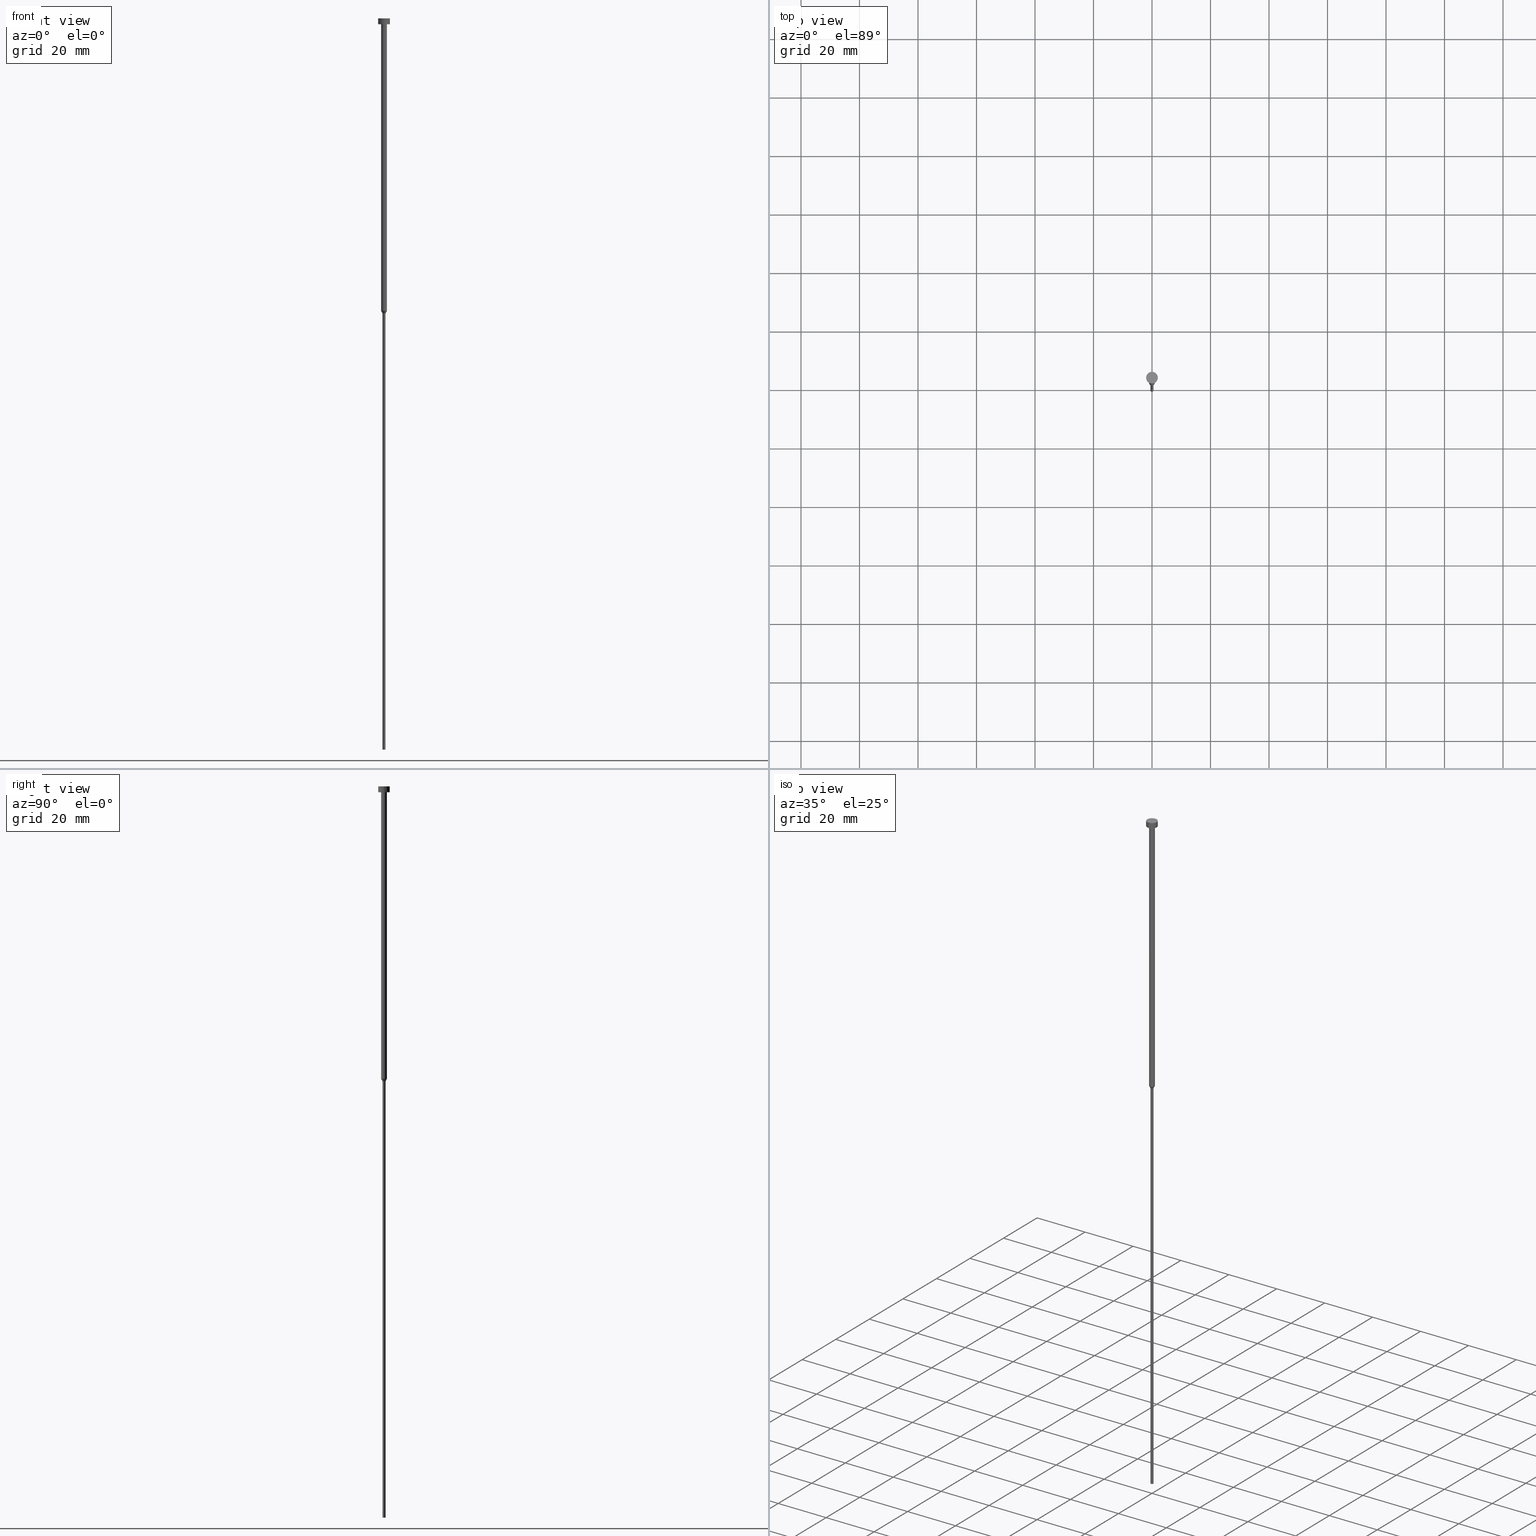
[diagram: canonical four-view strip — front | top / right | iso, engineering-drawing reading convention]
A machine part, canonical four-view strip (front | top / right | iso — engineering-drawing reading convention). The complete STEP part file that produces these views, byte-faithful:
ISO-10303-21;
HEADER;
FILE_DESCRIPTION (( 'STEP AP203' ),
    '1' );
FILE_NAME ('5bb6.STEP',
    '2023-02-13T10:58:22',
    ( '' ),
    ( '' ),
    'SwSTEP 2.0',
    'SolidWorks 2019',
    '' );
FILE_SCHEMA (( 'CONFIG_CONTROL_DESIGN' ));
ENDSEC;

DATA;
#1 = DIRECTION ( 'NONE',  ( -0.000000000000000000, -0.000000000000000000, 1.000000000000000000 ) ) ;
#2 = DIRECTION ( 'NONE',  ( -0.000000000000000000, -0.000000000000000000, 1.000000000000000000 ) ) ;
#3 = CONICAL_SURFACE ( 'NONE', #319, 1.000000000000003109, 0.5235987755982994818 ) ;
#4 = PLANE ( 'NONE',  #270 ) ;
#5 = DIRECTION ( 'NONE',  ( -0.000000000000000000, -0.000000000000000000, 1.000000000000000000 ) ) ;
#6 = DIRECTION ( 'NONE',  ( -0.000000000000000000, -0.000000000000000000, 1.000000000000000000 ) ) ;
#7 = VECTOR ( 'NONE', #55, 1000.000000000000114 ) ;
#8 =( GEOMETRIC_REPRESENTATION_CONTEXT ( 3 ) GLOBAL_UNCERTAINTY_ASSIGNED_CONTEXT ( ( #152 ) ) GLOBAL_UNIT_ASSIGNED_CONTEXT ( ( #344, #128, #123 ) ) REPRESENTATION_CONTEXT ( 'NONE', 'WORKASPACE' ) );
#9 = ADVANCED_FACE ( 'NONE', ( #131 ), #164, .T. ) ;
#10 = PERSON_AND_ORGANIZATION ( #248, #271 ) ;
#11 = PERSON_AND_ORGANIZATION_ROLE ( 'design_supplier' ) ;
#12 = EDGE_LOOP ( 'NONE', ( #292, #236, #181, #266 ) ) ;
#13 = DIRECTION ( 'NONE',  ( -0.000000000000000000, -0.000000000000000000, 1.000000000000000000 ) ) ;
#14 = ORIENTED_EDGE ( 'NONE', *, *, #288, .T. ) ;
#15 = EDGE_CURVE ( 'NONE', #74, #40, #111, .T. ) ;
#16 = CALENDAR_DATE ( 2023, 13, 2 ) ;
#17 = ORIENTED_EDGE ( 'NONE', *, *, #353, .F. ) ;
#18 = COORDINATED_UNIVERSAL_TIME_OFFSET ( 1, 0, .AHEAD. ) ;
#19 = ORIENTED_EDGE ( 'NONE', *, *, #173, .F. ) ;
#20 = EDGE_LOOP ( 'NONE', ( #17, #345 ) ) ;
#21 = CIRCLE ( 'NONE', #140, 0.5000000000000000000 ) ;
#22 = CIRCLE ( 'NONE', #43, 1.000000000000003109 ) ;
#23 = ORIENTED_EDGE ( 'NONE', *, *, #173, .T. ) ;
#24 = LOCAL_TIME ( 11, 58, 22.00000000000000000, #46 ) ;
#25 = CARTESIAN_POINT ( 'NONE',  ( -0.5000000000000000000, 6.123233995736766036E-17, -250.0000000000000000 ) ) ;
#26 = DIRECTION ( 'NONE',  ( 0.000000000000000000, -0.000000000000000000, 1.000000000000000000 ) ) ;
#27 = CARTESIAN_POINT ( 'NONE',  ( -1.000000000000003109, 1.224646799147356905E-16, -100.0000000000000000 ) ) ;
#28 = CIRCLE ( 'NONE', #120, 2.000000000000000000 ) ;
#29 = DIRECTION ( 'NONE',  ( -0.000000000000000000, -0.000000000000000000, 1.000000000000000000 ) ) ;
#30 = CARTESIAN_POINT ( 'NONE',  ( 0.000000000000000000, 0.000000000000000000, 0.000000000000000000 ) ) ;
#31 = CARTESIAN_POINT ( 'NONE',  ( -1.000000000000003331, 1.224646799147357151E-16, 0.000000000000000000 ) ) ;
#32 = AXIS2_PLACEMENT_3D ( 'NONE', #30, #168, #249 ) ;
#33 = CC_DESIGN_APPROVAL ( #303, ( #86 ) ) ;
#34 = CARTESIAN_POINT ( 'NONE',  ( 0.5000000000000000000, 0.000000000000000000, -100.8660254037844481 ) ) ;
#35 = DIRECTION ( 'NONE',  ( -0.000000000000000000, -0.000000000000000000, 1.000000000000000000 ) ) ;
#36 = DIRECTION ( 'NONE',  ( -0.000000000000000000, -0.000000000000000000, 1.000000000000000000 ) ) ;
#37 = PERSON_AND_ORGANIZATION ( #248, #271 ) ;
#38 = ORIENTED_EDGE ( 'NONE', *, *, #48, .F. ) ;
#39 = APPROVAL_STATUS ( 'not_yet_approved' ) ;
#40 = VERTEX_POINT ( 'NONE', #81 ) ;
#41 = APPLICATION_CONTEXT ( 'configuration controlled 3d designs of mechanical parts and assemblies' ) ;
#42 = VERTEX_POINT ( 'NONE', #49 ) ;
#43 = AXIS2_PLACEMENT_3D ( 'NONE', #67, #5, #197 ) ;
#44 = PERSON_AND_ORGANIZATION_ROLE ( 'creator' ) ;
#45 = ORIENTED_EDGE ( 'NONE', *, *, #256, .F. ) ;
#46 = COORDINATED_UNIVERSAL_TIME_OFFSET ( 1, 0, .AHEAD. ) ;
#47 = VERTEX_POINT ( 'NONE', #161 ) ;
#48 = EDGE_CURVE ( 'NONE', #42, #318, #51, .T. ) ;
#49 = CARTESIAN_POINT ( 'NONE',  ( 0.5000000000000000000, 0.000000000000000000, -250.0000000000000000 ) ) ;
#50 = VECTOR ( 'NONE', #119, 1000.000000000000000 ) ;
#51 = LINE ( 'NONE', #269, #155 ) ;
#52 = CC_DESIGN_APPROVAL ( #338, ( #226 ) ) ;
#53 = EDGE_CURVE ( 'NONE', #73, #204, #212, .T. ) ;
#54 = DIRECTION ( 'NONE',  ( -0.000000000000000000, -0.000000000000000000, 1.000000000000000000 ) ) ;
#55 = DIRECTION ( 'NONE',  ( 0.5000000000000005551, 0.000000000000000000, 0.8660254037844382635 ) ) ;
#56 = AXIS2_PLACEMENT_3D ( 'NONE', #300, #322, #328 ) ;
#57 = CARTESIAN_POINT ( 'NONE',  ( 0.000000000000000000, 0.000000000000000000, 0.000000000000000000 ) ) ;
#58 = ADVANCED_FACE ( 'NONE', ( #213 ), #110, .T. ) ;
#59 = LOCAL_TIME ( 11, 58, 22.00000000000000000, #121 ) ;
#60 = CARTESIAN_POINT ( 'NONE',  ( -1.000000000000003109, 1.224646799147356905E-16, -100.0000000000000000 ) ) ;
#61 = DIRECTION ( 'NONE',  ( 1.000000000000000000, 0.000000000000000000, 0.000000000000000000 ) ) ;
#62 = LINE ( 'NONE', #31, #50 ) ;
#63 = AXIS2_PLACEMENT_3D ( 'NONE', #190, #54, #355 ) ;
#64 = EDGE_CURVE ( 'NONE', #318, #74, #167, .T. ) ;
#65 = PRODUCT_DEFINITION_SHAPE ( 'NONE', 'NONE',  #254 ) ;
#66 = LINE ( 'NONE', #172, #135 ) ;
#67 = CARTESIAN_POINT ( 'NONE',  ( 0.000000000000000000, 0.000000000000000000, -100.0000000000000000 ) ) ;
#68 = APPROVAL_STATUS ( 'not_yet_approved' ) ;
#69 = EDGE_LOOP ( 'NONE', ( #180, #260 ) ) ;
#70 = CONICAL_SURFACE ( 'NONE', #199, 1.000000000000003109, 0.5235987755982994818 ) ;
#71 = ADVANCED_FACE ( 'NONE', ( #218, #187 ), #163, .T. ) ;
#72 = DATE_TIME_ROLE ( 'creation_date' ) ;
#73 = VERTEX_POINT ( 'NONE', #215 ) ;
#74 = VERTEX_POINT ( 'NONE', #165 ) ;
#75 = APPROVAL_STATUS ( 'not_yet_approved' ) ;
#76 = ORIENTED_EDGE ( 'NONE', *, *, #352, .T. ) ;
#77 = DESIGN_CONTEXT ( 'detailed design', #41, 'design' ) ;
#78 = CALENDAR_DATE ( 2023, 13, 2 ) ;
#79 = VERTEX_POINT ( 'NONE', #25 ) ;
#80 = DATE_AND_TIME ( #323, #342 ) ;
#81 = CARTESIAN_POINT ( 'NONE',  ( 1.000000000000003553, 0.000000000000000000, -2.000000000000000444 ) ) ;
#82 = CC_DESIGN_PERSON_AND_ORGANIZATION_ASSIGNMENT ( #156, #11, ( #226 ) ) ;
#83 = DIRECTION ( 'NONE',  ( 1.000000000000000000, 0.000000000000000000, 0.000000000000000000 ) ) ;
#84 = CIRCLE ( 'NONE', #298, 0.5000000000000000000 ) ;
#85 = DIRECTION ( 'NONE',  ( 1.000000000000000000, 0.000000000000000000, 0.000000000000000000 ) ) ;
#86 = SECURITY_CLASSIFICATION ( '', '', #206 ) ;
#87 = FACE_OUTER_BOUND ( 'NONE', #294, .T. ) ;
#88 = CARTESIAN_POINT ( 'NONE',  ( 1.000000000000003109, 0.000000000000000000, -100.0000000000000000 ) ) ;
#89 = CYLINDRICAL_SURFACE ( 'NONE', #242, 0.5000000000000000000 ) ;
#90 = EDGE_CURVE ( 'NONE', #73, #318, #21, .T. ) ;
#91 = MANIFOLD_SOLID_BREP ( 'Rotovat1', #195 ) ;
#92 = CARTESIAN_POINT ( 'NONE',  ( 0.000000000000000000, 0.000000000000000000, -2.000000000000000444 ) ) ;
#93 = FACE_OUTER_BOUND ( 'NONE', #347, .T. ) ;
#94 = ADVANCED_FACE ( 'NONE', ( #109 ), #136, .T. ) ;
#95 = CARTESIAN_POINT ( 'NONE',  ( 0.000000000000000000, 0.000000000000000000, -100.0000000000000000 ) ) ;
#96 = AXIS2_PLACEMENT_3D ( 'NONE', #95, #224, #336 ) ;
#97 = DIRECTION ( 'NONE',  ( 1.000000000000000000, 0.000000000000000000, 0.000000000000000000 ) ) ;
#98 = ADVANCED_FACE ( 'NONE', ( #325 ), #137, .T. ) ;
#99 = APPROVAL_DATE_TIME ( #183, #338 ) ;
#100 = ORIENTED_EDGE ( 'NONE', *, *, #343, .T. ) ;
#101 = AXIS2_PLACEMENT_3D ( 'NONE', #145, #169, #223 ) ;
#102 = APPLICATION_PROTOCOL_DEFINITION ( 'international standard', 'config_control_design', 1994, #273 ) ;
#103 = DIRECTION ( 'NONE',  ( 1.000000000000000000, 0.000000000000000000, 0.000000000000000000 ) ) ;
#104 = ORIENTED_EDGE ( 'NONE', *, *, #256, .T. ) ;
#105 = ORIENTED_EDGE ( 'NONE', *, *, #117, .T. ) ;
#106 = AXIS2_PLACEMENT_3D ( 'NONE', #133, #26, #240 ) ;
#107 = ORIENTED_EDGE ( 'NONE', *, *, #48, .T. ) ;
#108 = ORIENTED_EDGE ( 'NONE', *, *, #15, .F. ) ;
#109 = FACE_OUTER_BOUND ( 'NONE', #127, .T. ) ;
#110 = CYLINDRICAL_SURFACE ( 'NONE', #220, 1.000000000000003331 ) ;
#111 = LINE ( 'NONE', #350, #238 ) ;
#112 = LINE ( 'NONE', #329, #335 ) ;
#113 = CIRCLE ( 'NONE', #313, 1.000000000000003553 ) ;
#114 = DIRECTION ( 'NONE',  ( 1.000000000000000000, 0.000000000000000000, 0.000000000000000000 ) ) ;
#115 = LOCAL_TIME ( 11, 58, 22.00000000000000000, #18 ) ;
#116 = DIRECTION ( 'NONE',  ( 1.000000000000000000, 0.000000000000000000, 0.000000000000000000 ) ) ;
#117 = EDGE_CURVE ( 'NONE', #47, #237, #216, .T. ) ;
#118 = CARTESIAN_POINT ( 'NONE',  ( 0.000000000000000000, 0.000000000000000000, -2.449293598294705921E-16 ) ) ;
#119 = DIRECTION ( 'NONE',  ( -0.000000000000000000, -0.000000000000000000, 1.000000000000000000 ) ) ;
#120 = AXIS2_PLACEMENT_3D ( 'NONE', #261, #286, #289 ) ;
#121 = COORDINATED_UNIVERSAL_TIME_OFFSET ( 1, 0, .AHEAD. ) ;
#122 = ORIENTED_EDGE ( 'NONE', *, *, #64, .F. ) ;
#123 =( NAMED_UNIT ( * ) SI_UNIT ( $, .STERADIAN. ) SOLID_ANGLE_UNIT ( ) );
#124 = ORIENTED_EDGE ( 'NONE', *, *, #352, .F. ) ;
#125 = ADVANCED_FACE ( 'NONE', ( #274 ), #3, .T. ) ;
#126 = APPROVAL_DATE_TIME ( #259, #177 ) ;
#127 = EDGE_LOOP ( 'NONE', ( #230, #287 ) ) ;
#128 =( NAMED_UNIT ( * ) PLANE_ANGLE_UNIT ( ) SI_UNIT ( $, .RADIAN. ) );
#129 = VECTOR ( 'NONE', #193, 1000.000000000000114 ) ;
#130 = ADVANCED_FACE ( 'NONE', ( #87 ), #70, .T. ) ;
#131 = FACE_OUTER_BOUND ( 'NONE', #275, .T. ) ;
#132 = CC_DESIGN_PERSON_AND_ORGANIZATION_ASSIGNMENT ( #37, #179, ( #86 ) ) ;
#133 = CARTESIAN_POINT ( 'NONE',  ( 0.000000000000000000, 0.000000000000000000, -1.224646799147352961E-16 ) ) ;
#134 = DIRECTION ( 'NONE',  ( -0.000000000000000000, -0.000000000000000000, 1.000000000000000000 ) ) ;
#135 = VECTOR ( 'NONE', #1, 1000.000000000000000 ) ;
#136 = PLANE ( 'NONE',  #106 ) ;
#137 = CYLINDRICAL_SURFACE ( 'NONE', #340, 1.000000000000003331 ) ;
#138 = CC_DESIGN_PERSON_AND_ORGANIZATION_ASSIGNMENT ( #10, #44, ( #226 ) ) ;
#139 = DIRECTION ( 'NONE',  ( -0.000000000000000000, -0.000000000000000000, 1.000000000000000000 ) ) ;
#140 = AXIS2_PLACEMENT_3D ( 'NONE', #276, #29, #217 ) ;
#141 = CARTESIAN_POINT ( 'NONE',  ( 0.000000000000000000, 0.000000000000000000, -250.0000000000000000 ) ) ;
#142 = APPROVAL_PERSON_ORGANIZATION ( #153, #177, #320 ) ;
#143 = DIRECTION ( 'NONE',  ( 0.000000000000000000, 0.000000000000000000, -1.000000000000000000 ) ) ;
#144 = CARTESIAN_POINT ( 'NONE',  ( 0.000000000000000000, 0.000000000000000000, -250.0000000000000000 ) ) ;
#145 = CARTESIAN_POINT ( 'NONE',  ( 0.000000000000000000, 0.000000000000000000, -100.8660254037844481 ) ) ;
#146 = VECTOR ( 'NONE', #2, 1000.000000000000000 ) ;
#147 = AXIS2_PLACEMENT_3D ( 'NONE', #252, #6, #114 ) ;
#148 = DATE_TIME_ROLE ( 'classification_date' ) ;
#149 = ORIENTED_EDGE ( 'NONE', *, *, #15, .T. ) ;
#150 = CARTESIAN_POINT ( 'NONE',  ( 0.000000000000000000, 0.000000000000000000, 0.000000000000000000 ) ) ;
#151 = EDGE_LOOP ( 'NONE', ( #19, #176, #149, #290 ) ) ;
#152 = UNCERTAINTY_MEASURE_WITH_UNIT (LENGTH_MEASURE( 1.000000000000000082E-05 ), #344, 'distance_accuracy_value', 'NONE');
#153 = PERSON_AND_ORGANIZATION ( #248, #271 ) ;
#154 = ORIENTED_EDGE ( 'NONE', *, *, #296, .F. ) ;
#155 = VECTOR ( 'NONE', #239, 1000.000000000000000 ) ;
#156 = PERSON_AND_ORGANIZATION ( #248, #271 ) ;
#157 = EDGE_LOOP ( 'NONE', ( #210, #100, #349, #124 ) ) ;
#158 = APPROVAL_DATE_TIME ( #80, #303 ) ;
#159 = ORIENTED_EDGE ( 'NONE', *, *, #326, .T. ) ;
#160 = ADVANCED_FACE ( 'NONE', ( #308 ), #89, .T. ) ;
#161 = CARTESIAN_POINT ( 'NONE',  ( -2.000000000000000000, 2.449293598294706414E-16, -2.000000000000000444 ) ) ;
#162 = AXIS2_PLACEMENT_3D ( 'NONE', #118, #311, #198 ) ;
#163 = PLANE ( 'NONE',  #255 ) ;
#164 = CYLINDRICAL_SURFACE ( 'NONE', #56, 2.000000000000000000 ) ;
#165 = CARTESIAN_POINT ( 'NONE',  ( 1.000000000000003109, 0.000000000000000000, -100.0000000000000000 ) ) ;
#166 = AXIS2_PLACEMENT_3D ( 'NONE', #331, #35, #116 ) ;
#167 = LINE ( 'NONE', #88, #7 ) ;
#168 = DIRECTION ( 'NONE',  ( -0.000000000000000000, -0.000000000000000000, 1.000000000000000000 ) ) ;
#169 = DIRECTION ( 'NONE',  ( -0.000000000000000000, -0.000000000000000000, 1.000000000000000000 ) ) ;
#170 = CYLINDRICAL_SURFACE ( 'NONE', #166, 0.5000000000000000000 ) ;
#171 = PRODUCT ( '5bb6', '5bb6', '', ( #315 ) ) ;
#172 = CARTESIAN_POINT ( 'NONE',  ( -2.000000000000000000, 2.449293598294706414E-16, 0.000000000000000000 ) ) ;
#173 = EDGE_CURVE ( 'NONE', #204, #314, #62, .T. ) ;
#174 = DIRECTION ( 'NONE',  ( -0.000000000000000000, -0.000000000000000000, 1.000000000000000000 ) ) ;
#175 = PERSON_AND_ORGANIZATION ( #248, #271 ) ;
#176 = ORIENTED_EDGE ( 'NONE', *, *, #282, .T. ) ;
#177 = APPROVAL ( #39, 'NEUR�EN�' ) ;
#178 = APPROVAL_PERSON_ORGANIZATION ( #175, #338, #291 ) ;
#179 = PERSON_AND_ORGANIZATION_ROLE ( 'classification_officer' ) ;
#180 = ORIENTED_EDGE ( 'NONE', *, *, #234, .T. ) ;
#181 = ORIENTED_EDGE ( 'NONE', *, *, #64, .T. ) ;
#182 = CC_DESIGN_PERSON_AND_ORGANIZATION_ASSIGNMENT ( #263, #293, ( #171 ) ) ;
#183 = DATE_AND_TIME ( #257, #24 ) ;
#184 = CIRCLE ( 'NONE', #147, 2.000000000000000000 ) ;
#185 = ORIENTED_EDGE ( 'NONE', *, *, #189, .F. ) ;
#186 = DIRECTION ( 'NONE',  ( -0.000000000000000000, -0.000000000000000000, 1.000000000000000000 ) ) ;
#187 = FACE_OUTER_BOUND ( 'NONE', #20, .T. ) ;
#188 = CIRCLE ( 'NONE', #162, 2.000000000000000000 ) ;
#189 = EDGE_CURVE ( 'NONE', #79, #73, #306, .T. ) ;
#190 = CARTESIAN_POINT ( 'NONE',  ( 0.000000000000000000, 0.000000000000000000, -2.000000000000000444 ) ) ;
#191 = SHAPE_DEFINITION_REPRESENTATION ( #65, #258 ) ;
#192 = CARTESIAN_POINT ( 'NONE',  ( 0.000000000000000000, 0.000000000000000000, -100.0000000000000000 ) ) ;
#193 = DIRECTION ( 'NONE',  ( -0.5000000000000005551, 6.123233995736773431E-17, 0.8660254037844382635 ) ) ;
#194 = ADVANCED_FACE ( 'NONE', ( #332 ), #170, .T. ) ;
#195 = CLOSED_SHELL ( 'NONE', ( #251, #58, #130, #160, #203, #194, #125, #98, #71, #9, #94 ) ) ;
#196 = CARTESIAN_POINT ( 'NONE',  ( 0.000000000000000000, 0.000000000000000000, 0.000000000000000000 ) ) ;
#197 = DIRECTION ( 'NONE',  ( 1.000000000000000000, 0.000000000000000000, 0.000000000000000000 ) ) ;
#198 = DIRECTION ( 'NONE',  ( 1.000000000000000000, 0.000000000000000000, 0.000000000000000000 ) ) ;
#199 = AXIS2_PLACEMENT_3D ( 'NONE', #302, #186, #295 ) ;
#200 = CARTESIAN_POINT ( 'NONE',  ( 2.000000000000000000, 0.000000000000000000, -2.000000000000000444 ) ) ;
#201 = CARTESIAN_POINT ( 'NONE',  ( -0.5000000000000000000, 6.123233995736766036E-17, 0.000000000000000000 ) ) ;
#202 = PERSON_AND_ORGANIZATION ( #248, #271 ) ;
#203 = ADVANCED_FACE ( 'NONE', ( #93 ), #4, .T. ) ;
#204 = VERTEX_POINT ( 'NONE', #60 ) ;
#205 = EDGE_CURVE ( 'NONE', #314, #40, #113, .T. ) ;
#206 = SECURITY_CLASSIFICATION_LEVEL ( 'unclassified' ) ;
#207 = ORIENTED_EDGE ( 'NONE', *, *, #189, .T. ) ;
#208 = CC_DESIGN_DATE_AND_TIME_ASSIGNMENT ( #228, #148, ( #86 ) ) ;
#209 = EDGE_LOOP ( 'NONE', ( #14, #23, #267, #108 ) ) ;
#210 = ORIENTED_EDGE ( 'NONE', *, *, #353, .T. ) ;
#211 = VERTEX_POINT ( 'NONE', #253 ) ;
#212 = LINE ( 'NONE', #27, #129 ) ;
#213 = FACE_OUTER_BOUND ( 'NONE', #209, .T. ) ;
#214 = PRODUCT_RELATED_PRODUCT_CATEGORY ( 'detail', '', ( #171 ) ) ;
#215 = CARTESIAN_POINT ( 'NONE',  ( -0.5000000000000000000, 6.123233995736766036E-17, -100.8660254037844481 ) ) ;
#216 = CIRCLE ( 'NONE', #63, 2.000000000000000000 ) ;
#217 = DIRECTION ( 'NONE',  ( 1.000000000000000000, 0.000000000000000000, 0.000000000000000000 ) ) ;
#218 = FACE_BOUND ( 'NONE', #69, .T. ) ;
#219 = DIRECTION ( 'NONE',  ( 1.000000000000000000, 0.000000000000000000, 0.000000000000000000 ) ) ;
#220 = AXIS2_PLACEMENT_3D ( 'NONE', #57, #324, #83 ) ;
#221 = CIRCLE ( 'NONE', #101, 0.5000000000000000000 ) ;
#222 = DIRECTION ( 'NONE',  ( -0.000000000000000000, -0.000000000000000000, 1.000000000000000000 ) ) ;
#223 = DIRECTION ( 'NONE',  ( 1.000000000000000000, 0.000000000000000000, 0.000000000000000000 ) ) ;
#224 = DIRECTION ( 'NONE',  ( -0.000000000000000000, -0.000000000000000000, 1.000000000000000000 ) ) ;
#225 = DIRECTION ( 'NONE',  ( 1.000000000000000000, 0.000000000000000000, 0.000000000000000000 ) ) ;
#226 = PRODUCT_DEFINITION_FORMATION_WITH_SPECIFIED_SOURCE ( 'LIBOVOLN�', '', #171, .NOT_KNOWN. ) ;
#227 = CC_DESIGN_PERSON_AND_ORGANIZATION_ASSIGNMENT ( #284, #229, ( #254 ) ) ;
#228 = DATE_AND_TIME ( #346, #115 ) ;
#229 = PERSON_AND_ORGANIZATION_ROLE ( 'creator' ) ;
#230 = ORIENTED_EDGE ( 'NONE', *, *, #265, .T. ) ;
#231 = CIRCLE ( 'NONE', #279, 0.5000000000000000000 ) ;
#232 = CC_DESIGN_SECURITY_CLASSIFICATION ( #86, ( #226 ) ) ;
#233 = ORIENTED_EDGE ( 'NONE', *, *, #343, .F. ) ;
#234 = EDGE_CURVE ( 'NONE', #40, #314, #305, .T. ) ;
#235 = DATE_AND_TIME ( #78, #330 ) ;
#236 = ORIENTED_EDGE ( 'NONE', *, *, #90, .T. ) ;
#237 = VERTEX_POINT ( 'NONE', #200 ) ;
#238 = VECTOR ( 'NONE', #241, 1000.000000000000000 ) ;
#239 = DIRECTION ( 'NONE',  ( -0.000000000000000000, -0.000000000000000000, 1.000000000000000000 ) ) ;
#240 = DIRECTION ( 'NONE',  ( 1.000000000000000000, 0.000000000000000000, 0.000000000000000000 ) ) ;
#241 = DIRECTION ( 'NONE',  ( -0.000000000000000000, -0.000000000000000000, 1.000000000000000000 ) ) ;
#242 = AXIS2_PLACEMENT_3D ( 'NONE', #196, #36, #219 ) ;
#243 = EDGE_CURVE ( 'NONE', #339, #211, #188, .T. ) ;
#244 = CIRCLE ( 'NONE', #96, 1.000000000000003109 ) ;
#245 = COORDINATED_UNIVERSAL_TIME_OFFSET ( 1, 0, .AHEAD. ) ;
#246 = DIRECTION ( 'NONE',  ( 0.000000000000000000, 0.000000000000000000, -1.000000000000000000 ) ) ;
#247 = CARTESIAN_POINT ( 'NONE',  ( 0.000000000000000000, 0.000000000000000000, 0.000000000000000000 ) ) ;
#248 = PERSON ( 'NEUR�EN�', 'NEUR�EN�', 'NEUR�EN�', ('NEUR�EN�'), ('NEUR�EN�'), ('NEUR�EN�') ) ;
#249 = DIRECTION ( 'NONE',  ( 1.000000000000000000, 0.000000000000000000, 0.000000000000000000 ) ) ;
#250 = DIRECTION ( 'NONE',  ( -0.000000000000000000, -0.000000000000000000, 1.000000000000000000 ) ) ;
#251 = ADVANCED_FACE ( 'NONE', ( #280 ), #277, .T. ) ;
#252 = CARTESIAN_POINT ( 'NONE',  ( 0.000000000000000000, 0.000000000000000000, -2.449293598294705921E-16 ) ) ;
#253 = CARTESIAN_POINT ( 'NONE',  ( 2.000000000000000000, 0.000000000000000000, -2.449293598294705921E-16 ) ) ;
#254 = PRODUCT_DEFINITION ( 'NEZN�M�', '', #226, #77 ) ;
#255 = AXIS2_PLACEMENT_3D ( 'NONE', #354, #246, #272 ) ;
#256 = EDGE_CURVE ( 'NONE', #79, #42, #231, .T. ) ;
#257 = CALENDAR_DATE ( 2023, 13, 2 ) ;
#258 = ADVANCED_BREP_SHAPE_REPRESENTATION ( '5bb6', ( #91, #348 ), #8 ) ;
#259 = DATE_AND_TIME ( #16, #59 ) ;
#260 = ORIENTED_EDGE ( 'NONE', *, *, #205, .T. ) ;
#261 = CARTESIAN_POINT ( 'NONE',  ( 0.000000000000000000, 0.000000000000000000, -2.000000000000000444 ) ) ;
#262 = EDGE_LOOP ( 'NONE', ( #159, #207, #154, #38 ) ) ;
#263 = PERSON_AND_ORGANIZATION ( #248, #271 ) ;
#264 = ORIENTED_EDGE ( 'NONE', *, *, #326, .F. ) ;
#265 = EDGE_CURVE ( 'NONE', #211, #339, #184, .T. ) ;
#266 = ORIENTED_EDGE ( 'NONE', *, *, #282, .F. ) ;
#267 = ORIENTED_EDGE ( 'NONE', *, *, #234, .F. ) ;
#268 = CC_DESIGN_DATE_AND_TIME_ASSIGNMENT ( #235, #72, ( #254 ) ) ;
#269 = CARTESIAN_POINT ( 'NONE',  ( 0.5000000000000000000, 0.000000000000000000, 0.000000000000000000 ) ) ;
#270 = AXIS2_PLACEMENT_3D ( 'NONE', #281, #143, #283 ) ;
#271 = ORGANIZATION ( 'NEUR�EN�', 'NEUR�EN�', '' ) ;
#272 = DIRECTION ( 'NONE',  ( -1.000000000000000000, 0.000000000000000000, -0.000000000000000000 ) ) ;
#273 = APPLICATION_CONTEXT ( 'configuration controlled 3d designs of mechanical parts and assemblies' ) ;
#274 = FACE_OUTER_BOUND ( 'NONE', #12, .T. ) ;
#275 = EDGE_LOOP ( 'NONE', ( #233, #105, #76, #285 ) ) ;
#276 = CARTESIAN_POINT ( 'NONE',  ( 0.000000000000000000, 0.000000000000000000, -100.8660254037844481 ) ) ;
#277 = CYLINDRICAL_SURFACE ( 'NONE', #32, 2.000000000000000000 ) ;
#278 = CARTESIAN_POINT ( 'NONE',  ( -1.000000000000003553, 1.224646799147357398E-16, -2.000000000000000444 ) ) ;
#279 = AXIS2_PLACEMENT_3D ( 'NONE', #144, #139, #225 ) ;
#280 = FACE_OUTER_BOUND ( 'NONE', #157, .T. ) ;
#281 = CARTESIAN_POINT ( 'NONE',  ( 0.000000000000000000, 0.000000000000000000, -250.0000000000000000 ) ) ;
#282 = EDGE_CURVE ( 'NONE', #204, #74, #22, .T. ) ;
#283 = DIRECTION ( 'NONE',  ( -1.000000000000000000, 0.000000000000000000, -0.000000000000000000 ) ) ;
#284 = PERSON_AND_ORGANIZATION ( #248, #271 ) ;
#285 = ORIENTED_EDGE ( 'NONE', *, *, #243, .F. ) ;
#286 = DIRECTION ( 'NONE',  ( -0.000000000000000000, -0.000000000000000000, 1.000000000000000000 ) ) ;
#287 = ORIENTED_EDGE ( 'NONE', *, *, #243, .T. ) ;
#288 = EDGE_CURVE ( 'NONE', #74, #204, #244, .T. ) ;
#289 = DIRECTION ( 'NONE',  ( 1.000000000000000000, 0.000000000000000000, 0.000000000000000000 ) ) ;
#290 = ORIENTED_EDGE ( 'NONE', *, *, #205, .F. ) ;
#291 = APPROVAL_ROLE ( '' ) ;
#292 = ORIENTED_EDGE ( 'NONE', *, *, #53, .F. ) ;
#293 = PERSON_AND_ORGANIZATION_ROLE ( 'design_owner' ) ;
#294 = EDGE_LOOP ( 'NONE', ( #304, #321, #312, #122 ) ) ;
#295 = DIRECTION ( 'NONE',  ( 1.000000000000000000, 0.000000000000000000, 0.000000000000000000 ) ) ;
#296 = EDGE_CURVE ( 'NONE', #318, #73, #221, .T. ) ;
#297 = EDGE_LOOP ( 'NONE', ( #185, #104, #107, #316 ) ) ;
#298 = AXIS2_PLACEMENT_3D ( 'NONE', #141, #250, #333 ) ;
#299 = APPROVAL_PERSON_ORGANIZATION ( #202, #303, #301 ) ;
#300 = CARTESIAN_POINT ( 'NONE',  ( 0.000000000000000000, 0.000000000000000000, 0.000000000000000000 ) ) ;
#301 = APPROVAL_ROLE ( '' ) ;
#302 = CARTESIAN_POINT ( 'NONE',  ( 0.000000000000000000, 0.000000000000000000, -100.0000000000000000 ) ) ;
#303 = APPROVAL ( #68, 'NEUR�EN�' ) ;
#304 = ORIENTED_EDGE ( 'NONE', *, *, #296, .T. ) ;
#305 = CIRCLE ( 'NONE', #334, 1.000000000000003553 ) ;
#306 = LINE ( 'NONE', #201, #146 ) ;
#307 = CARTESIAN_POINT ( 'NONE',  ( 0.000000000000000000, 0.000000000000000000, -2.000000000000000444 ) ) ;
#308 = FACE_OUTER_BOUND ( 'NONE', #262, .T. ) ;
#309 = CC_DESIGN_APPROVAL ( #177, ( #254 ) ) ;
#310 = CARTESIAN_POINT ( 'NONE',  ( -2.000000000000000000, 2.449293598294706414E-16, -2.449293598294705921E-16 ) ) ;
#311 = DIRECTION ( 'NONE',  ( -0.000000000000000000, -0.000000000000000000, 1.000000000000000000 ) ) ;
#312 = ORIENTED_EDGE ( 'NONE', *, *, #288, .F. ) ;
#313 = AXIS2_PLACEMENT_3D ( 'NONE', #307, #222, #97 ) ;
#314 = VERTEX_POINT ( 'NONE', #278 ) ;
#315 = MECHANICAL_CONTEXT ( 'NONE', #273, 'mechanical' ) ;
#316 = ORIENTED_EDGE ( 'NONE', *, *, #90, .F. ) ;
#317 = APPLICATION_PROTOCOL_DEFINITION ( 'international standard', 'config_control_design', 1994, #41 ) ;
#318 = VERTEX_POINT ( 'NONE', #34 ) ;
#319 = AXIS2_PLACEMENT_3D ( 'NONE', #192, #134, #327 ) ;
#320 = APPROVAL_ROLE ( '' ) ;
#321 = ORIENTED_EDGE ( 'NONE', *, *, #53, .T. ) ;
#322 = DIRECTION ( 'NONE',  ( -0.000000000000000000, -0.000000000000000000, 1.000000000000000000 ) ) ;
#323 = CALENDAR_DATE ( 2023, 13, 2 ) ;
#324 = DIRECTION ( 'NONE',  ( -0.000000000000000000, -0.000000000000000000, 1.000000000000000000 ) ) ;
#325 = FACE_OUTER_BOUND ( 'NONE', #151, .T. ) ;
#326 = EDGE_CURVE ( 'NONE', #42, #79, #84, .T. ) ;
#327 = DIRECTION ( 'NONE',  ( 1.000000000000000000, 0.000000000000000000, 0.000000000000000000 ) ) ;
#328 = DIRECTION ( 'NONE',  ( 1.000000000000000000, 0.000000000000000000, 0.000000000000000000 ) ) ;
#329 = CARTESIAN_POINT ( 'NONE',  ( 2.000000000000000000, 0.000000000000000000, 0.000000000000000000 ) ) ;
#330 = LOCAL_TIME ( 11, 58, 22.00000000000000000, #337 ) ;
#331 = CARTESIAN_POINT ( 'NONE',  ( 0.000000000000000000, 0.000000000000000000, 0.000000000000000000 ) ) ;
#332 = FACE_OUTER_BOUND ( 'NONE', #297, .T. ) ;
#333 = DIRECTION ( 'NONE',  ( 1.000000000000000000, 0.000000000000000000, 0.000000000000000000 ) ) ;
#334 = AXIS2_PLACEMENT_3D ( 'NONE', #92, #174, #61 ) ;
#335 = VECTOR ( 'NONE', #13, 1000.000000000000000 ) ;
#336 = DIRECTION ( 'NONE',  ( 1.000000000000000000, 0.000000000000000000, 0.000000000000000000 ) ) ;
#337 = COORDINATED_UNIVERSAL_TIME_OFFSET ( 1, 0, .AHEAD. ) ;
#338 = APPROVAL ( #75, 'NEUR�EN�' ) ;
#339 = VERTEX_POINT ( 'NONE', #310 ) ;
#340 = AXIS2_PLACEMENT_3D ( 'NONE', #247, #351, #85 ) ;
#341 = DIRECTION ( 'NONE',  ( 0.000000000000000000, 0.000000000000000000, 1.000000000000000000 ) ) ;
#342 = LOCAL_TIME ( 11, 58, 22.00000000000000000, #245 ) ;
#343 = EDGE_CURVE ( 'NONE', #47, #339, #66, .T. ) ;
#344 =( LENGTH_UNIT ( ) NAMED_UNIT ( * ) SI_UNIT ( .MILLI., .METRE. ) );
#345 = ORIENTED_EDGE ( 'NONE', *, *, #117, .F. ) ;
#346 = CALENDAR_DATE ( 2023, 13, 2 ) ;
#347 = EDGE_LOOP ( 'NONE', ( #264, #45 ) ) ;
#348 = AXIS2_PLACEMENT_3D ( 'NONE', #150, #341, #103 ) ;
#349 = ORIENTED_EDGE ( 'NONE', *, *, #265, .F. ) ;
#350 = CARTESIAN_POINT ( 'NONE',  ( 1.000000000000003331, 0.000000000000000000, 0.000000000000000000 ) ) ;
#351 = DIRECTION ( 'NONE',  ( -0.000000000000000000, -0.000000000000000000, 1.000000000000000000 ) ) ;
#352 = EDGE_CURVE ( 'NONE', #237, #211, #112, .T. ) ;
#353 = EDGE_CURVE ( 'NONE', #237, #47, #28, .T. ) ;
#354 = CARTESIAN_POINT ( 'NONE',  ( 0.000000000000000000, -2.000000000000000000, -2.000000000000000444 ) ) ;
#355 = DIRECTION ( 'NONE',  ( 1.000000000000000000, 0.000000000000000000, 0.000000000000000000 ) ) ;
ENDSEC;
END-ISO-10303-21;
